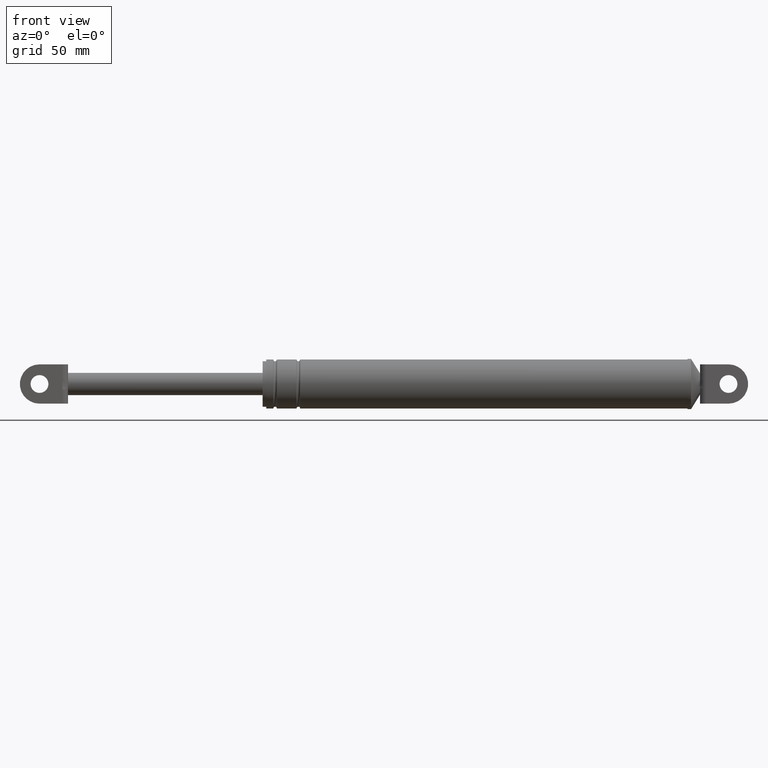
[diagram: clean part render]
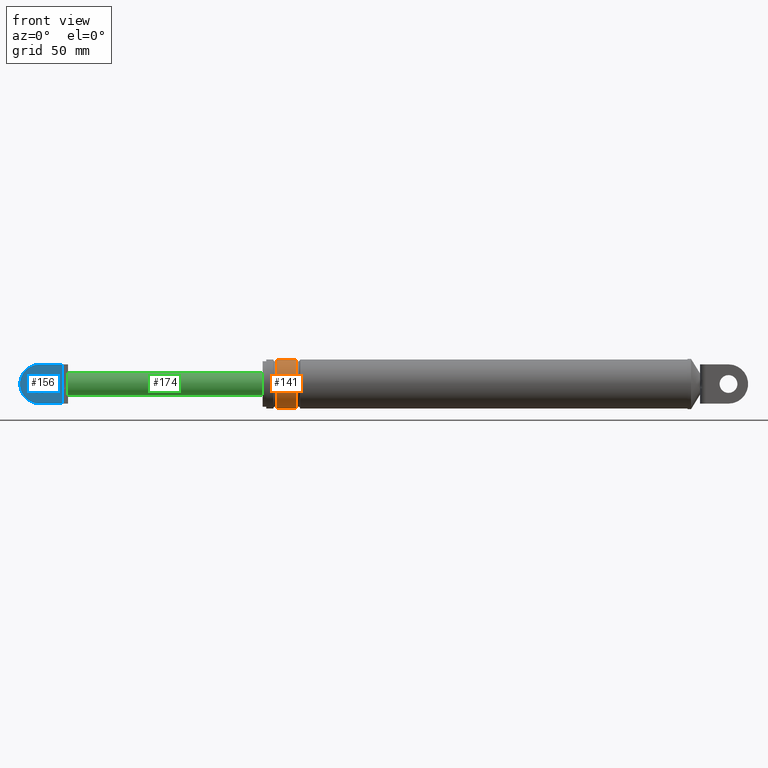
[diagram: same view with three faces highlighted in distinct colors, each labeled with its STEP entity id]
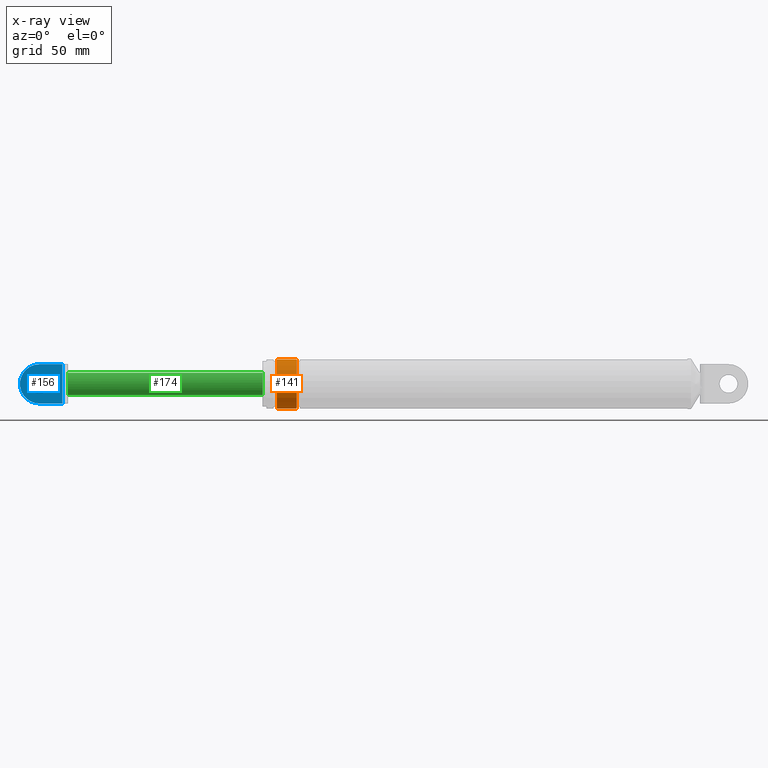
[diagram: x-ray of the same camera — body ghosted, the three highlighted faces saturated]
A machine part, front view with three faces highlighted in distinct colors.
The next image is the same camera in x-ray (body ghosted, the three faces saturated) — at least one of them is partly hidden behind the body in this view.
Their STEP definitions:

[orange] entity #141 — the highlighted cylindrical surface (edge-blend (fillet) strip) has radius 13.7 mm, axis along (-1, 0, 0).
#141=ADVANCED_FACE('',(#473),#472,.T.);
#472=CYLINDRICAL_SURFACE('',#1442,1.37000000000E+001);
#473=FACE_OUTER_BOUND('',#1443,.T.);
#1439=CARTESIAN_POINT('',(1.52559735358E+002,-8.15045810784E-015,1.79725493158E+002));
#1440=DIRECTION('',(-1.00000000000E+000,1.46694769862E-015,1.90942119689E-030));
#1441=DIRECTION('',(1.03669887834E-030,-5.94923949478E-016,1.00000000000E+000));
#1442=AXIS2_PLACEMENT_3D('',#1439,#1440,#1441);
#1443=EDGE_LOOP('',(#2073,#2074,#2075,#2076));
#2073=ORIENTED_EDGE('',*,*,#2318,.T.);
#2074=ORIENTED_EDGE('',*,*,#2320,.T.);
#2075=ORIENTED_EDGE('',*,*,#2322,.F.);
#2076=ORIENTED_EDGE('',*,*,#2321,.F.);
#2318=EDGE_CURVE('',#2894,#2893,#2913,.T.);
#2320=EDGE_CURVE('',#2893,#2919,#2927,.T.);
#2321=EDGE_CURVE('',#2894,#2920,#2933,.T.);
#2322=EDGE_CURVE('',#2920,#2919,#2939,.T.);
#2893=VERTEX_POINT('',#3753);
#2894=VERTEX_POINT('',#3754);
#2913=CIRCLE('',#3772,1.37000000000E+001);
#2919=VERTEX_POINT('',#3773);
#2920=VERTEX_POINT('',#3774);
#2927=(BOUNDED_CURVE() B_SPLINE_CURVE(1,(#3779,#3780),.UNSPECIFIED.,.F.,.F.) B_SPLINE_CURVE_WITH_KNOTS((2,2),(8.33333343261E-002,9.16666667006E-001),.UNSPECIFIED.) CURVE() GEOMETRIC_REPRESENTATION_ITEM() RATIONAL_B_SPLINE_CURVE((1.00000000000E+000,1.00000000000E+000)) REPRESENTATION_ITEM('') );
#2933=(BOUNDED_CURVE() B_SPLINE_CURVE(1,(#3781,#3782),.UNSPECIFIED.,.F.,.F.) B_SPLINE_CURVE_WITH_KNOTS((2,2),(8.33333333333E-002,9.16666666667E-001),.UNSPECIFIED.) CURVE() GEOMETRIC_REPRESENTATION_ITEM() RATIONAL_B_SPLINE_CURVE((7.50000000000E-001,7.50000000000E-001)) REPRESENTATION_ITEM('') );
#2939=CIRCLE('',#3786,1.37000000000E+001);
#3753=CARTESIAN_POINT('',(1.64659735358E+002,2.39216054373E-013,1.93425493158E+002));
#3754=CARTESIAN_POINT('',(1.64659735358E+002,3.05618015870E-015,1.66025493158E+002));
#3769=CARTESIAN_POINT('',(1.64659735358E+002,-8.83679421621E-014,1.79725493158E+002));
#3770=DIRECTION('',(-1.00000000000E+000,-7.33473849312E-016,4.64124217261E-030));
#3771=DIRECTION('',(-9.12037902123E-030,6.10674375483E-015,-1.00000000000E+000));
#3772=AXIS2_PLACEMENT_3D('',#3769,#3770,#3771);
#3773=CARTESIAN_POINT('',(1.53659735358E+002,2.30926389122E-014,1.93425493158E+002));
#3774=CARTESIAN_POINT('',(1.53659735358E+002,7.52689430633E-015,1.66025493158E+002));
#3779=CARTESIAN_POINT('',(1.64659735345E+002,-3.40509833498E-014,1.93425493158E+002));
#3780=CARTESIAN_POINT('',(1.53659735354E+002,-1.79145586776E-014,1.93425493158E+002));
#3781=CARTESIAN_POINT('',(1.64659735358E+002,-1.79609413762E-014,1.66025493158E+002));
#3782=CARTESIAN_POINT('',(1.53659735358E+002,-2.17110280371E-015,1.66025493158E+002));
#3783=CARTESIAN_POINT('',(1.53659735358E+002,1.12117697108E-014,1.79725493158E+002));
#3784=DIRECTION('',(-1.00000000000E+000,7.33473849312E-016,6.90080059566E-031));
#3785=DIRECTION('',(-1.30291128875E-030,-8.35518852861E-016,-1.00000000000E+000));
#3786=AXIS2_PLACEMENT_3D('',#3783,#3784,#3785);

[blue] entity #156 — the highlighted planar face has unit normal (0, -1, 0).
#156=ADVANCED_FACE('',(#623,#624),#622,.T.);
#622=PLANE('',#1828);
#623=FACE_OUTER_BOUND('',#1829,.T.);
#624=FACE_BOUND('',#1830,.T.);
#1825=CARTESIAN_POINT('',(7.27081917270E+000,-8.69999700000E+000,1.66525493158E+002));
#1826=DIRECTION('',(0.00000000000E+000,-1.00000000000E+000,0.00000000000E+000));
#1827=DIRECTION('',(1.00000000000E+000,0.00000000000E+000,0.00000000000E+000));
#1828=AXIS2_PLACEMENT_3D('',#1825,#1826,#1827);
#1829=EDGE_LOOP('',(#2133,#2134,#2135,#2136,#2137,#2138));
#1830=EDGE_LOOP('',(#2139,#2140));
#2133=ORIENTED_EDGE('',*,*,#2349,.T.);
#2134=ORIENTED_EDGE('',*,*,#2350,.T.);
#2135=ORIENTED_EDGE('',*,*,#2348,.T.);
#2136=ORIENTED_EDGE('',*,*,#2340,.T.);
#2137=ORIENTED_EDGE('',*,*,#2351,.F.);
#2138=ORIENTED_EDGE('',*,*,#2352,.T.);
#2139=ORIENTED_EDGE('',*,*,#2353,.F.);
#2140=ORIENTED_EDGE('',*,*,#2354,.F.);
#2340=EDGE_CURVE('',#3055,#3047,#3056,.T.);
#2348=EDGE_CURVE('',#3095,#3055,#3109,.T.);
#2349=EDGE_CURVE('',#3115,#3116,#3117,.T.);
#2350=EDGE_CURVE('',#3116,#3095,#3123,.T.);
#2351=EDGE_CURVE('',#3129,#3047,#3130,.T.);
#2352=EDGE_CURVE('',#3129,#3115,#3136,.T.);
#2353=EDGE_CURVE('',#3142,#3143,#3144,.T.);
#2354=EDGE_CURVE('',#3143,#3142,#3150,.T.);
#3047=VERTEX_POINT('',#3841);
#3055=VERTEX_POINT('',#3847);
#3056=LINE('',#3848,#3849);
#3095=VERTEX_POINT('',#3879);
#3109=(BOUNDED_CURVE() B_SPLINE_CURVE(3,(#3889,#3890,#3891,#3892,#3893,#3894,#3895,#3896,#3897,#3898),.UNSPECIFIED.,.F.,.F.) B_SPLINE_CURVE_WITH_KNOTS((4,2,2,2,4),(0.00000000000E+000,1.48651353192E-003,2.97302706385E-003,4.45954059577E-003,5.94605412770E-003),.UNSPECIFIED.) CURVE() GEOMETRIC_REPRESENTATION_ITEM() RATIONAL_B_SPLINE_CURVE((1.00000000000E+000,1.00000000000E+000,1.00000000000E+000,1.00000000000E+000,1.00000000000E+000,1.00000000000E+000,1.00000000000E+000,1.00000000000E+000,1.00000000000E+000,1.00000000000E+000)) REPRESENTATION_ITEM('') );
#3115=VERTEX_POINT('',#3899);
#3116=VERTEX_POINT('',#3900);
#3117=LINE('',#3901,#3902);
#3123=LINE('',#3904,#3905);
#3129=VERTEX_POINT('',#3907);
#3130=LINE('',#3908,#3909);
#3136=CIRCLE('',#3914,1.10000000000E+001);
#3142=VERTEX_POINT('',#3915);
#3143=VERTEX_POINT('',#3916);
#3144=CIRCLE('',#3920,5.00000000000E+000);
#3150=CIRCLE('',#3924,5.00000000000E+000);
#3841=CARTESIAN_POINT('',(3.34597353584E+001,-8.69999700000E+000,1.90725493158E+002));
#3847=CARTESIAN_POINT('',(3.34597353584E+001,-8.69999700000E+000,1.82694084238E+002));
#3848=CARTESIAN_POINT('',(3.34597353584E+001,-8.69999700000E+000,1.82694084238E+002));
#3849=VECTOR('',#3850,8.03140892004E+000);
#3850=DIRECTION('',(0.00000000000E+000,0.00000000000E+000,1.00000000000E+000));
#3879=CARTESIAN_POINT('',(3.34597353584E+001,-8.69999700000E+000,1.76756902078E+002));
#3889=CARTESIAN_POINT('',(3.34597353584E+001,-8.69999700000E+000,1.76756902078E+002));
#3890=CARTESIAN_POINT('',(3.34597353584E+001,-8.69999700000E+000,1.77252407869E+002));
#3891=CARTESIAN_POINT('',(3.34853295393E+001,-8.69999700000E+000,1.77747155186E+002));
#3892=CARTESIAN_POINT('',(3.35305820261E+001,-8.69999700000E+000,1.78736721335E+002));
#3893=CARTESIAN_POINT('',(3.35488972153E+001,-8.69999700000E+000,1.79231956322E+002));
#3894=CARTESIAN_POINT('',(3.35488387764E+001,-8.69999700000E+000,1.80221723885E+002));
#3895=CARTESIAN_POINT('',(3.35304990890E+001,-8.69999700000E+000,1.80716183946E+002));
#3896=CARTESIAN_POINT('',(3.34852755390E+001,-8.69999700000E+000,1.81704906346E+002));
#3897=CARTESIAN_POINT('',(3.34597353584E+001,-8.69999700000E+000,1.82199199780E+002));
#3898=CARTESIAN_POINT('',(3.34597353584E+001,-8.69999700000E+000,1.82694084238E+002));
#3899=CARTESIAN_POINT('',(2.06597343985E+001,-8.69999700000E+000,1.68725493158E+002));
#3900=CARTESIAN_POINT('',(3.34597353584E+001,-8.69999700000E+000,1.68725493158E+002));
#3901=CARTESIAN_POINT('',(2.06597343985E+001,-8.69999700000E+000,1.68725493158E+002));
#3902=VECTOR('',#3903,1.28000009599E+001);
#3903=DIRECTION('',(1.00000000000E+000,0.00000000000E+000,0.00000000000E+000));
#3904=CARTESIAN_POINT('',(3.34597353584E+001,-8.69999700000E+000,1.68725493158E+002));
#3905=VECTOR('',#3906,8.03140892005E+000);
#3906=DIRECTION('',(0.00000000000E+000,0.00000000000E+000,1.00000000000E+000));
#3907=CARTESIAN_POINT('',(2.06597343985E+001,-8.69999700000E+000,1.90725493158E+002));
#3908=CARTESIAN_POINT('',(2.06597343985E+001,-8.69999700000E+000,1.90725493158E+002));
#3909=VECTOR('',#3910,1.28000009599E+001);
#3910=DIRECTION('',(1.00000000000E+000,0.00000000000E+000,0.00000000000E+000));
#3911=CARTESIAN_POINT('',(2.06597353584E+001,-8.69999700000E+000,1.79725493158E+002));
#3912=DIRECTION('',(0.00000000000E+000,-1.00000000000E+000,0.00000000000E+000));
#3913=DIRECTION('',(8.72664665379E-008,-0.00000000000E+000,-1.00000000000E+000));
#3914=AXIS2_PLACEMENT_3D('',#3911,#3912,#3913);
#3915=CARTESIAN_POINT('',(2.06597353584E+001,-8.69999700000E+000,1.84725493158E+002));
#3916=CARTESIAN_POINT('',(2.06597353584E+001,-8.69999700000E+000,1.74725493158E+002));
#3917=CARTESIAN_POINT('',(2.06597353584E+001,-8.69999700000E+000,1.79725493158E+002));
#3918=DIRECTION('',(0.00000000000E+000,-1.00000000000E+000,0.00000000000E+000));
#3919=DIRECTION('',(-0.00000000000E+000,-0.00000000000E+000,-1.00000000000E+000));
#3920=AXIS2_PLACEMENT_3D('',#3917,#3918,#3919);
#3921=CARTESIAN_POINT('',(2.06597353584E+001,-8.69999700000E+000,1.79725493158E+002));
#3922=DIRECTION('',(0.00000000000E+000,-1.00000000000E+000,0.00000000000E+000));
#3923=DIRECTION('',(-0.00000000000E+000,-0.00000000000E+000,-1.00000000000E+000));
#3924=AXIS2_PLACEMENT_3D('',#3921,#3922,#3923);

[green] entity #174 — the highlighted cylindrical surface (edge-blend (fillet) strip) has radius 6.25 mm, axis along (-1, -0, 0).
#174=ADVANCED_FACE('',(#807),#806,.T.);
#806=CYLINDRICAL_SURFACE('',#1922,6.25000000000E+000);
#807=FACE_OUTER_BOUND('',#1923,.T.);
#1919=CARTESIAN_POINT('',(2.66597353584E+001,6.95746800356E-015,1.79725493158E+002));
#1920=DIRECTION('',(-1.00000000000E+000,-1.60777467769E-015,2.85124297047E-029));
#1921=DIRECTION('',(2.35425205992E-030,-1.91983878045E-014,-1.00000000000E+000));
#1922=AXIS2_PLACEMENT_3D('',#1919,#1920,#1921);
#1923=EDGE_LOOP('',(#2229,#2230,#2231,#2232,#2233,#2234));
#2229=ORIENTED_EDGE('',*,*,#2359,.F.);
#2230=ORIENTED_EDGE('',*,*,#2347,.F.);
#2231=ORIENTED_EDGE('',*,*,#2357,.F.);
#2232=ORIENTED_EDGE('',*,*,#2395,.F.);
#2233=ORIENTED_EDGE('',*,*,#2389,.F.);
#2234=ORIENTED_EDGE('',*,*,#2396,.T.);
#2347=EDGE_CURVE('',#3096,#3062,#3103,.T.);
#2357=EDGE_CURVE('',#3163,#3096,#3170,.T.);
#2359=EDGE_CURVE('',#3062,#3182,#3183,.T.);
#2389=EDGE_CURVE('',#3381,#3382,#3383,.T.);
#2395=EDGE_CURVE('',#3382,#3163,#3419,.T.);
#2396=EDGE_CURVE('',#3381,#3182,#3425,.T.);
#3062=VERTEX_POINT('',#3851);
#3096=VERTEX_POINT('',#3880);
#3103=CIRCLE('',#3888,6.25000000000E+000);
#3163=VERTEX_POINT('',#3929);
#3170=CIRCLE('',#3937,6.25000000000E+000);
#3182=VERTEX_POINT('',#3941);
#3183=CIRCLE('',#3945,6.25000000000E+000);
#3381=VERTEX_POINT('',#4063);
#3382=VERTEX_POINT('',#4064);
#3383=CIRCLE('',#4068,6.25000000000E+000);
#3419=(BOUNDED_CURVE() B_SPLINE_CURVE(1,(#4081,#4082),.UNSPECIFIED.,.F.,.F.) B_SPLINE_CURVE_WITH_KNOTS((2,2),(7.75193799282E-002,9.22480620316E-001),.UNSPECIFIED.) CURVE() GEOMETRIC_REPRESENTATION_ITEM() RATIONAL_B_SPLINE_CURVE((1.00000000000E+000,1.00000000000E+000)) REPRESENTATION_ITEM('') );
#3425=(BOUNDED_CURVE() B_SPLINE_CURVE(1,(#4083,#4084),.UNSPECIFIED.,.F.,.F.) B_SPLINE_CURVE_WITH_KNOTS((2,2),(7.75193798450E-002,9.22480620155E-001),.UNSPECIFIED.) CURVE() GEOMETRIC_REPRESENTATION_ITEM() RATIONAL_B_SPLINE_CURVE((7.50000000000E-001,7.50000000000E-001)) REPRESENTATION_ITEM('') );
#3851=CARTESIAN_POINT('',(3.66597353584E+001,-5.49999700000E+000,1.82694084238E+002));
#3880=CARTESIAN_POINT('',(3.66597353584E+001,-5.49999700000E+000,1.76756902078E+002));
#3885=CARTESIAN_POINT('',(3.66597353584E+001,5.48894263375E-013,1.79725493158E+002));
#3886=DIRECTION('',(-1.00000000000E+000,-0.00000000000E+000,0.00000000000E+000));
#3887=DIRECTION('',(-0.00000000000E+000,8.79999520000E-001,4.74974572793E-001));
#3888=AXIS2_PLACEMENT_3D('',#3885,#3886,#3887);
#3929=CARTESIAN_POINT('',(3.66597353584E+001,4.17619826425E-012,1.73475493158E+002));
#3934=CARTESIAN_POINT('',(3.66597353584E+001,-1.09912079438E-012,1.79725493158E+002));
#3935=DIRECTION('',(-1.00000000000E+000,6.13440106908E-015,-2.99582408938E-015));
#3936=DIRECTION('',(-6.82121026330E-015,-8.79999520000E-001,4.74974572793E-001));
#3937=AXIS2_PLACEMENT_3D('',#3934,#3935,#3936);
#3941=CARTESIAN_POINT('',(3.66597353584E+001,7.57710260221E-007,1.85975493158E+002));
#3942=CARTESIAN_POINT('',(3.66597353584E+001,2.35367281221E-014,1.79725493158E+002));
#3943=DIRECTION('',(-1.00000000000E+000,2.63478595248E-016,4.88154631067E-016));
#3944=DIRECTION('',(-0.00000000000E+000,8.79999520000E-001,-4.74974572793E-001));
#3945=AXIS2_PLACEMENT_3D('',#3942,#3943,#3944);
#4063=CARTESIAN_POINT('',(1.45659735358E+002,1.98282654649E-013,1.85975493158E+002));
#4064=CARTESIAN_POINT('',(1.45659735358E+002,1.99248025486E-013,1.73475493158E+002));
#4065=CARTESIAN_POINT('',(1.45659735358E+002,1.98282654649E-013,1.79725493158E+002));
#4066=DIRECTION('',(1.00000000000E+000,0.00000000000E+000,-0.00000000000E+000));
#4067=DIRECTION('',(0.00000000000E+000,-1.22460635382E-016,1.00000000000E+000));
#4068=AXIS2_PLACEMENT_3D('',#4065,#4066,#4067);
#4081=CARTESIAN_POINT('',(1.45659735348E+002,7.82927308535E-014,1.73475493158E+002));
#4082=CARTESIAN_POINT('',(3.66597353377E+001,-9.69547090310E-014,1.73475493158E+002));
#4083=CARTESIAN_POINT('',(1.45659735358E+002,3.18732120800E-013,1.85975493158E+002));
#4084=CARTESIAN_POINT('',(3.66597353584E+001,1.43120657444E-013,1.85975493158E+002));